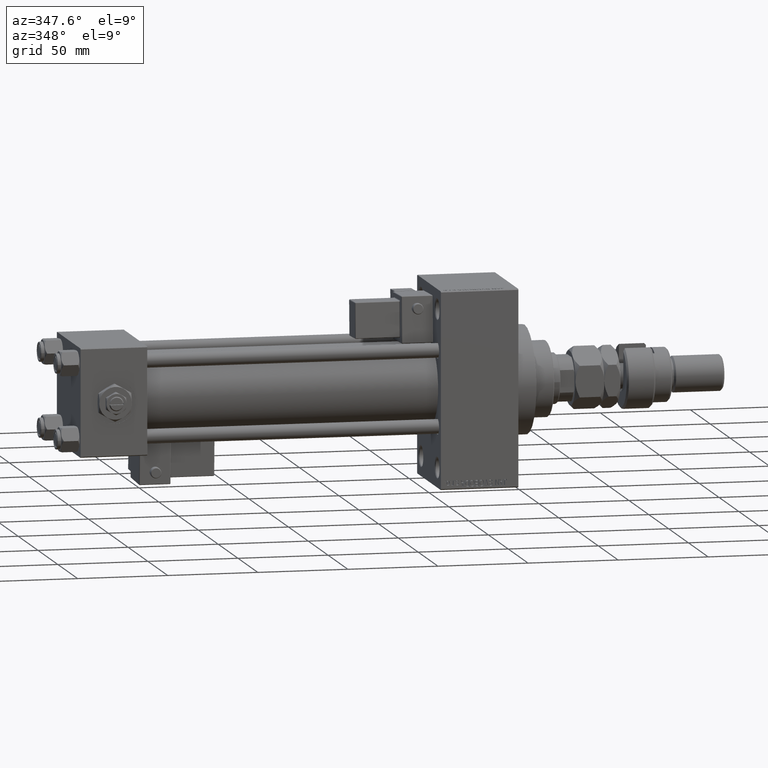
[diagram: clean part render]
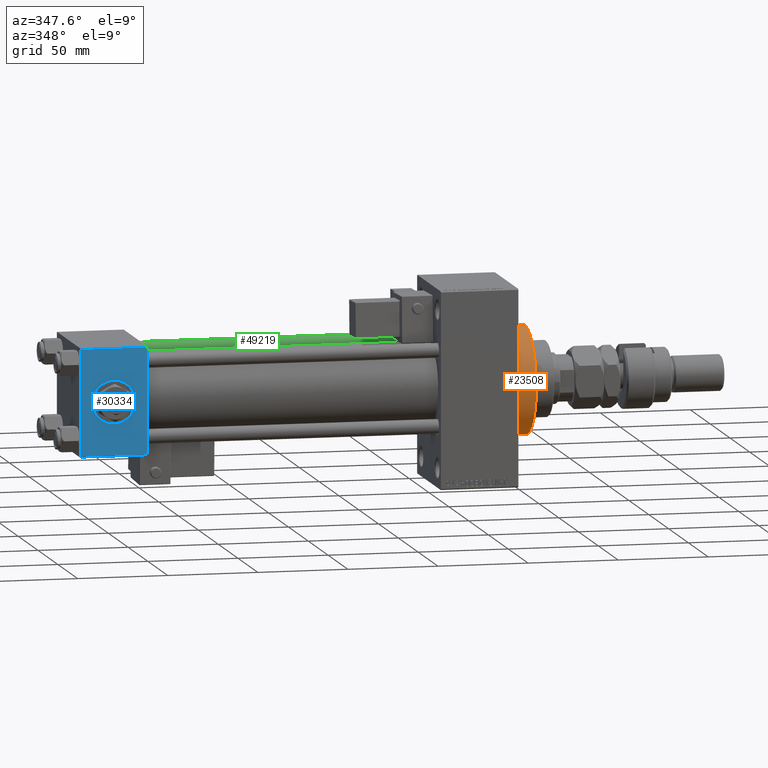
[diagram: same view with three faces highlighted in distinct colors, each labeled with its STEP entity id]
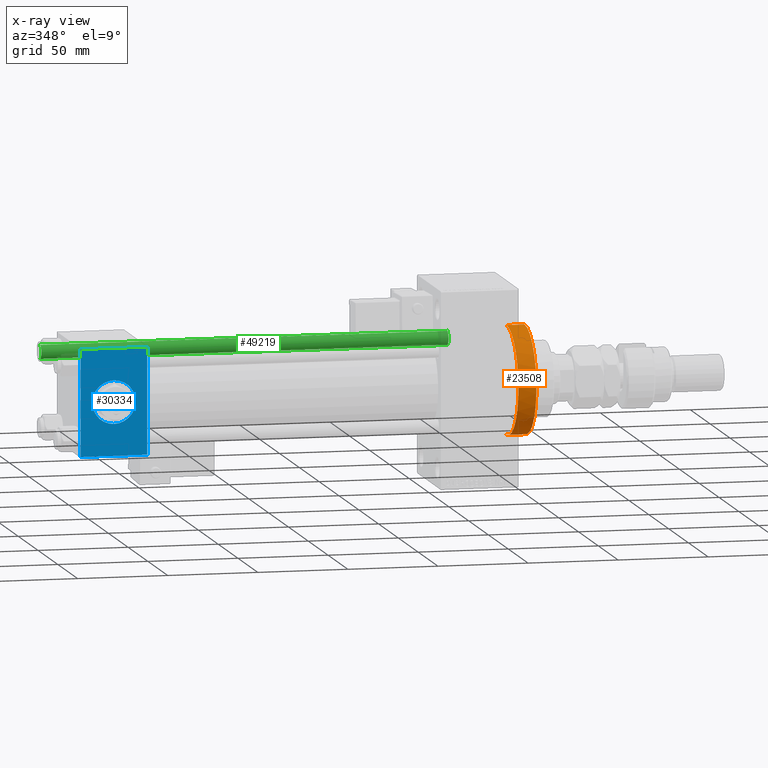
[diagram: x-ray of the same camera — body ghosted, the three highlighted faces saturated]
A machine part, auxiliary view with three faces highlighted in distinct colors.
The next image is the same camera in x-ray (body ghosted, the three faces saturated) — at least one of them is partly hidden behind the body in this view.
Their STEP definitions:

[orange] entity #23508 — the highlighted cylindrical surface (partial cylindrical patch) has radius 30 mm, axis along (-1, -0, -0).
#138 = EDGE_CURVE ( 'NONE', #618, #8967, #49418, .T. ) ;
#618 = VERTEX_POINT ( 'NONE', #50857 ) ;
#2794 = CARTESIAN_POINT ( 'NONE',  ( 243.0000000000000000, 0.000000000000000000, 0.000000000000000000 ) ) ;
#4965 = VERTEX_POINT ( 'NONE', #42432 ) ;
#5042 = AXIS2_PLACEMENT_3D ( 'NONE', #31780, #48443, #10991 ) ;
#5852 = ORIENTED_EDGE ( 'NONE', *, *, #51231, .F. ) ;
#6368 = CARTESIAN_POINT ( 'NONE',  ( 243.0000000000000000, 3.673940397442059178E-15, -30.00000000000000000 ) ) ;
#7455 = CIRCLE ( 'NONE', #37153, 30.00000000000000000 ) ;
#8134 = DIRECTION ( 'NONE',  ( 1.000000000000000000, 0.000000000000000000, 0.000000000000000000 ) ) ;
#8967 = VERTEX_POINT ( 'NONE', #25655 ) ;
#10492 = VECTOR ( 'NONE', #42708, 1000.000000000000000 ) ;
#10991 = DIRECTION ( 'NONE',  ( 0.000000000000000000, 0.000000000000000000, 1.000000000000000000 ) ) ;
#13634 = AXIS2_PLACEMENT_3D ( 'NONE', #32826, #49493, #28736 ) ;
#15102 = CYLINDRICAL_SURFACE ( 'NONE', #5042, 30.00000000000000000 ) ;
#15309 = CARTESIAN_POINT ( 'NONE',  ( 253.0000000000000000, 3.673940397442059178E-15, -30.00000000000000000 ) ) ;
#17286 = CARTESIAN_POINT ( 'NONE',  ( 253.0000000000000000, 3.673940397442059178E-15, -30.00000000000000000 ) ) ;
#17894 = CARTESIAN_POINT ( 'NONE',  ( 253.0000000000000000, 0.000000000000000000, 30.00000000000000000 ) ) ;
#18435 = EDGE_CURVE ( 'NONE', #4965, #27072, #7455, .T. ) ;
#19895 = DIRECTION ( 'NONE',  ( 0.000000000000000000, 0.000000000000000000, -1.000000000000000000 ) ) ;
#23447 = EDGE_CURVE ( 'NONE', #8967, #30780, #43476, .T. ) ;
#23508 = ADVANCED_FACE ( 'NONE', ( #44083 ), #15102, .T. ) ;
#24683 = EDGE_CURVE ( 'NONE', #4965, #618, #34307, .T. ) ;
#25655 = CARTESIAN_POINT ( 'NONE',  ( 243.0000000000000000, -30.00000000000000000, 0.000000000000000000 ) ) ;
#26090 = VECTOR ( 'NONE', #51233, 1000.000000000000000 ) ;
#27072 = VERTEX_POINT ( 'NONE', #15309 ) ;
#27753 = AXIS2_PLACEMENT_3D ( 'NONE', #2794, #52546, #43830 ) ;
#28736 = DIRECTION ( 'NONE',  ( 0.000000000000000000, 0.000000000000000000, -1.000000000000000000 ) ) ;
#30033 = ORIENTED_EDGE ( 'NONE', *, *, #23447, .T. ) ;
#30393 = LINE ( 'NONE', #17286, #10492 ) ;
#30780 = VERTEX_POINT ( 'NONE', #6368 ) ;
#31780 = CARTESIAN_POINT ( 'NONE',  ( 253.0000000000000000, 0.000000000000000000, 0.000000000000000000 ) ) ;
#32716 = ORIENTED_EDGE ( 'NONE', *, *, #18435, .F. ) ;
#32826 = CARTESIAN_POINT ( 'NONE',  ( 243.0000000000000000, 0.000000000000000000, 0.000000000000000000 ) ) ;
#34307 = LINE ( 'NONE', #17894, #26090 ) ;
#37143 = EDGE_LOOP ( 'NONE', ( #5852, #32716, #49993, #53364, #30033 ) ) ;
#37153 = AXIS2_PLACEMENT_3D ( 'NONE', #53496, #8134, #19895 ) ;
#42432 = CARTESIAN_POINT ( 'NONE',  ( 253.0000000000000000, 0.000000000000000000, 30.00000000000000000 ) ) ;
#42708 = DIRECTION ( 'NONE',  ( -1.000000000000000000, -0.000000000000000000, -0.000000000000000000 ) ) ;
#43476 = CIRCLE ( 'NONE', #27753, 30.00000000000000000 ) ;
#43830 = DIRECTION ( 'NONE',  ( 0.000000000000000000, 0.000000000000000000, -1.000000000000000000 ) ) ;
#44083 = FACE_OUTER_BOUND ( 'NONE', #37143, .T. ) ;
#48443 = DIRECTION ( 'NONE',  ( -1.000000000000000000, -0.000000000000000000, -0.000000000000000000 ) ) ;
#49418 = CIRCLE ( 'NONE', #13634, 30.00000000000000000 ) ;
#49493 = DIRECTION ( 'NONE',  ( 1.000000000000000000, 0.000000000000000000, 0.000000000000000000 ) ) ;
#49993 = ORIENTED_EDGE ( 'NONE', *, *, #24683, .T. ) ;
#50857 = CARTESIAN_POINT ( 'NONE',  ( 243.0000000000000000, 0.000000000000000000, 30.00000000000000000 ) ) ;
#51231 = EDGE_CURVE ( 'NONE', #27072, #30780, #30393, .T. ) ;
#51233 = DIRECTION ( 'NONE',  ( -1.000000000000000000, -0.000000000000000000, -0.000000000000000000 ) ) ;
#52546 = DIRECTION ( 'NONE',  ( 1.000000000000000000, 0.000000000000000000, 0.000000000000000000 ) ) ;
#53364 = ORIENTED_EDGE ( 'NONE', *, *, #138, .T. ) ;
#53496 = CARTESIAN_POINT ( 'NONE',  ( 253.0000000000000000, 0.000000000000000000, 0.000000000000000000 ) ) ;

[blue] entity #30334 — the highlighted planar face has unit normal (0, 1, 0).
#595 = VECTOR ( 'NONE', #22653, 1000.000000000000000 ) ;
#682 = EDGE_CURVE ( 'NONE', #46220, #4728, #30271, .T. ) ;
#1749 = AXIS2_PLACEMENT_3D ( 'NONE', #20175, #7040, #36822 ) ;
#1801 = EDGE_CURVE ( 'NONE', #29616, #40834, #9528, .T. ) ;
#3133 = LINE ( 'NONE', #28029, #4885 ) ;
#3316 = EDGE_CURVE ( 'NONE', #15355, #29616, #20709, .T. ) ;
#3476 = FACE_BOUND ( 'NONE', #52805, .T. ) ;
#4139 = VECTOR ( 'NONE', #26659, 1000.000000000000000 ) ;
#4728 = VERTEX_POINT ( 'NONE', #44094 ) ;
#4885 = VECTOR ( 'NONE', #24210, 1000.000000000000000 ) ;
#5728 = DIRECTION ( 'NONE',  ( 0.000000000000000000, -1.000000000000000000, -8.673617379884036705E-17 ) ) ;
#7040 = DIRECTION ( 'NONE',  ( -0.000000000000000000, 1.000000000000000000, 0.000000000000000000 ) ) ;
#9044 = DIRECTION ( 'NONE',  ( 0.000000000000000000, 0.000000000000000000, -1.000000000000000000 ) ) ;
#9528 = LINE ( 'NONE', #26210, #595 ) ;
#11126 = PLANE ( 'NONE',  #1749 ) ;
#11483 = CARTESIAN_POINT ( 'NONE',  ( 37.00000000000000000, -30.00000000000000000, -29.50000000000001776 ) ) ;
#14194 = ORIENTED_EDGE ( 'NONE', *, *, #682, .F. ) ;
#14701 = AXIS2_PLACEMENT_3D ( 'NONE', #17822, #34486, #17015 ) ;
#15355 = VERTEX_POINT ( 'NONE', #30289 ) ;
#17015 = DIRECTION ( 'NONE',  ( 0.000000000000000000, 0.000000000000000000, -1.000000000000000000 ) ) ;
#17822 = CARTESIAN_POINT ( 'NONE',  ( 18.50000000000000000, -30.00000000000000000, 0.000000000000000000 ) ) ;
#18668 = EDGE_CURVE ( 'NONE', #40834, #19278, #3133, .T. ) ;
#19278 = VERTEX_POINT ( 'NONE', #11483 ) ;
#20175 = CARTESIAN_POINT ( 'NONE',  ( 37.00000000000000000, -30.00000000000000000, 29.99999999999999289 ) ) ;
#20709 = LINE ( 'NONE', #25079, #31121 ) ;
#21232 = CARTESIAN_POINT ( 'NONE',  ( 0.000000000000000000, -30.00000000000000000, -29.50000000000001776 ) ) ;
#22212 = EDGE_CURVE ( 'NONE', #15355, #19278, #35134, .T. ) ;
#22653 = DIRECTION ( 'NONE',  ( 0.000000000000000000, 0.000000000000000000, -1.000000000000000000 ) ) ;
#22710 = CARTESIAN_POINT ( 'NONE',  ( 18.50000000000000000, -30.00000000000000000, 0.000000000000000000 ) ) ;
#24153 = AXIS2_PLACEMENT_3D ( 'NONE', #22710, #5728, #9044 ) ;
#24210 = DIRECTION ( 'NONE',  ( 1.000000000000000000, 0.000000000000000000, 0.000000000000000000 ) ) ;
#25079 = CARTESIAN_POINT ( 'NONE',  ( 37.00000000000000000, -30.00000000000000000, 29.49999999999999289 ) ) ;
#26210 = CARTESIAN_POINT ( 'NONE',  ( 0.000000000000000000, -30.00000000000000000, 29.99999999999999289 ) ) ;
#26659 = DIRECTION ( 'NONE',  ( 0.000000000000000000, 0.000000000000000000, -1.000000000000000000 ) ) ;
#28029 = CARTESIAN_POINT ( 'NONE',  ( 37.00000000000000000, -30.00000000000000000, -29.50000000000001776 ) ) ;
#29338 = EDGE_LOOP ( 'NONE', ( #53426, #51406, #42160, #42144 ) ) ;
#29616 = VERTEX_POINT ( 'NONE', #50054 ) ;
#30271 = CIRCLE ( 'NONE', #24153, 12.00000000000000178 ) ;
#30289 = CARTESIAN_POINT ( 'NONE',  ( 37.00000000000000000, -30.00000000000000000, 29.49999999999999289 ) ) ;
#30334 = ADVANCED_FACE ( 'NONE', ( #3476, #31913 ), #11126, .F. ) ;
#31121 = VECTOR ( 'NONE', #41743, 1000.000000000000000 ) ;
#31297 = CARTESIAN_POINT ( 'NONE',  ( 37.00000000000000000, -30.00000000000000000, 29.99999999999999289 ) ) ;
#31913 = FACE_OUTER_BOUND ( 'NONE', #29338, .T. ) ;
#34486 = DIRECTION ( 'NONE',  ( 0.000000000000000000, -1.000000000000000000, -8.673617379884036705E-17 ) ) ;
#35134 = LINE ( 'NONE', #31297, #4139 ) ;
#36822 = DIRECTION ( 'NONE',  ( 0.000000000000000000, -0.000000000000000000, 1.000000000000000000 ) ) ;
#40834 = VERTEX_POINT ( 'NONE', #21232 ) ;
#41715 = CARTESIAN_POINT ( 'NONE',  ( 18.50000000000000000, -30.00000000000000000, 12.00000000000000178 ) ) ;
#41743 = DIRECTION ( 'NONE',  ( -1.000000000000000000, 0.000000000000000000, 0.000000000000000000 ) ) ;
#42144 = ORIENTED_EDGE ( 'NONE', *, *, #3316, .T. ) ;
#42160 = ORIENTED_EDGE ( 'NONE', *, *, #22212, .F. ) ;
#44094 = CARTESIAN_POINT ( 'NONE',  ( 18.50000000000000000, -30.00000000000000000, -12.00000000000000178 ) ) ;
#44472 = EDGE_CURVE ( 'NONE', #4728, #46220, #50482, .T. ) ;
#46220 = VERTEX_POINT ( 'NONE', #41715 ) ;
#50054 = CARTESIAN_POINT ( 'NONE',  ( 0.000000000000000000, -30.00000000000000000, 29.49999999999999289 ) ) ;
#50482 = CIRCLE ( 'NONE', #14701, 12.00000000000000178 ) ;
#51059 = ORIENTED_EDGE ( 'NONE', *, *, #44472, .F. ) ;
#51406 = ORIENTED_EDGE ( 'NONE', *, *, #18668, .T. ) ;
#52805 = EDGE_LOOP ( 'NONE', ( #51059, #14194 ) ) ;
#53426 = ORIENTED_EDGE ( 'NONE', *, *, #1801, .T. ) ;

[green] entity #49219 — the highlighted cylindrical surface (edge-blend (fillet) strip) has radius 4 mm, axis along (-1, -0, 0).
#99 = LINE ( 'NONE', #37821, #11263 ) ;
#1567 = CARTESIAN_POINT ( 'NONE',  ( 4.000000000000000000, 4.898587196589411843E-16, 226.5000000000001421 ) ) ;
#1612 = DIRECTION ( 'NONE',  ( -0.000000000000000000, -0.000000000000000000, 1.000000000000000000 ) ) ;
#1792 = VERTEX_POINT ( 'NONE', #1567 ) ;
#2435 = CARTESIAN_POINT ( 'NONE',  ( 0.000000000000000000, 0.000000000000000000, 226.5000000000001421 ) ) ;
#7819 = CARTESIAN_POINT ( 'NONE',  ( -4.000000000000000000, 0.000000000000000000, 0.5000000000002224887 ) ) ;
#8431 = EDGE_CURVE ( 'NONE', #1792, #43873, #36110, .T. ) ;
#9827 = ORIENTED_EDGE ( 'NONE', *, *, #47148, .T. ) ;
#11263 = VECTOR ( 'NONE', #53664, 1000.000000000000000 ) ;
#12235 = CARTESIAN_POINT ( 'NONE',  ( 0.000000000000000000, 0.000000000000000000, 227.0000000000000000 ) ) ;
#13916 = CARTESIAN_POINT ( 'NONE',  ( 4.000000000000000000, 4.898587196589411843E-16, 0.5000000000002224887 ) ) ;
#14193 = CARTESIAN_POINT ( 'NONE',  ( 0.000000000000000000, 0.000000000000000000, 0.5000000000002224887 ) ) ;
#15277 = DIRECTION ( 'NONE',  ( 1.000000000000000000, 0.000000000000000000, 0.000000000000000000 ) ) ;
#15329 = CARTESIAN_POINT ( 'NONE',  ( 4.000000000000000000, 4.898587196589411843E-16, 227.0000000000000000 ) ) ;
#15676 = EDGE_LOOP ( 'NONE', ( #27337, #17194, #9827, #53007 ) ) ;
#16608 = FACE_OUTER_BOUND ( 'NONE', #15676, .T. ) ;
#16668 = AXIS2_PLACEMENT_3D ( 'NONE', #2435, #32245, #15277 ) ;
#17194 = ORIENTED_EDGE ( 'NONE', *, *, #52738, .T. ) ;
#24563 = CYLINDRICAL_SURFACE ( 'NONE', #37452, 4.000000000000000000 ) ;
#24565 = CIRCLE ( 'NONE', #16668, 4.000000000000000000 ) ;
#27337 = ORIENTED_EDGE ( 'NONE', *, *, #8431, .F. ) ;
#28367 = VERTEX_POINT ( 'NONE', #7819 ) ;
#28722 = AXIS2_PLACEMENT_3D ( 'NONE', #14193, #1612, #51903 ) ;
#32245 = DIRECTION ( 'NONE',  ( 0.000000000000000000, 0.000000000000000000, -1.000000000000000000 ) ) ;
#33314 = CARTESIAN_POINT ( 'NONE',  ( -4.000000000000000000, 0.000000000000000000, 226.5000000000001421 ) ) ;
#36110 = LINE ( 'NONE', #15329, #36580 ) ;
#36580 = VECTOR ( 'NONE', #48682, 1000.000000000000000 ) ;
#37452 = AXIS2_PLACEMENT_3D ( 'NONE', #12235, #41226, #49940 ) ;
#37821 = CARTESIAN_POINT ( 'NONE',  ( -4.000000000000000000, 0.000000000000000000, 227.0000000000000000 ) ) ;
#39181 = CIRCLE ( 'NONE', #28722, 4.000000000000000000 ) ;
#40229 = VERTEX_POINT ( 'NONE', #33314 ) ;
#41226 = DIRECTION ( 'NONE',  ( -0.000000000000000000, -0.000000000000000000, -1.000000000000000000 ) ) ;
#43873 = VERTEX_POINT ( 'NONE', #13916 ) ;
#45529 = EDGE_CURVE ( 'NONE', #28367, #43873, #39181, .T. ) ;
#47148 = EDGE_CURVE ( 'NONE', #40229, #28367, #99, .T. ) ;
#48682 = DIRECTION ( 'NONE',  ( -0.000000000000000000, -0.000000000000000000, -1.000000000000000000 ) ) ;
#49219 = ADVANCED_FACE ( 'NONE', ( #16608 ), #24563, .T. ) ;
#49940 = DIRECTION ( 'NONE',  ( -1.000000000000000000, 0.000000000000000000, 0.000000000000000000 ) ) ;
#51903 = DIRECTION ( 'NONE',  ( 1.000000000000000000, 0.000000000000000000, 0.000000000000000000 ) ) ;
#52738 = EDGE_CURVE ( 'NONE', #1792, #40229, #24565, .T. ) ;
#53007 = ORIENTED_EDGE ( 'NONE', *, *, #45529, .T. ) ;
#53664 = DIRECTION ( 'NONE',  ( -0.000000000000000000, -0.000000000000000000, -1.000000000000000000 ) ) ;